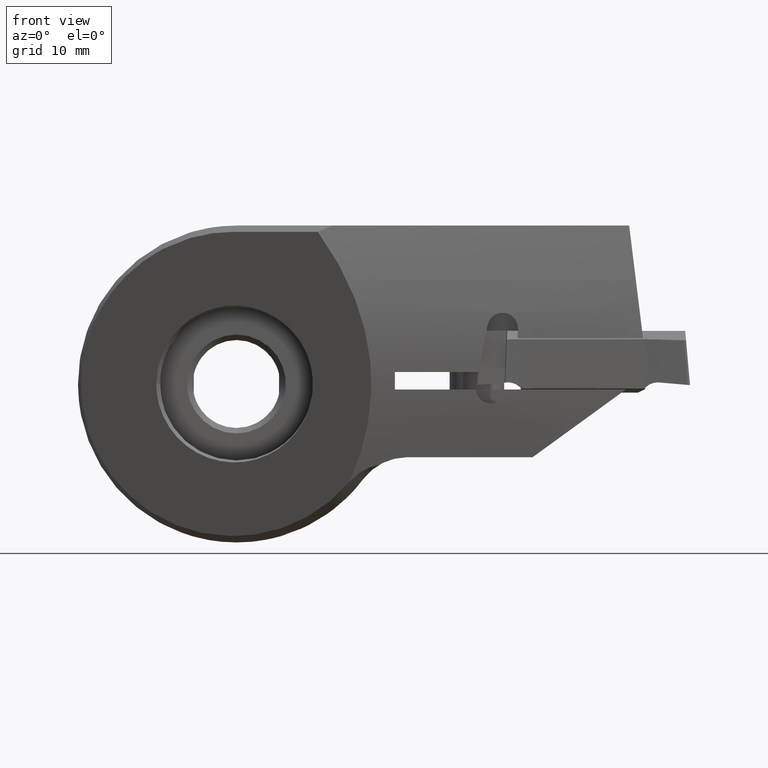
[diagram: clean part render]
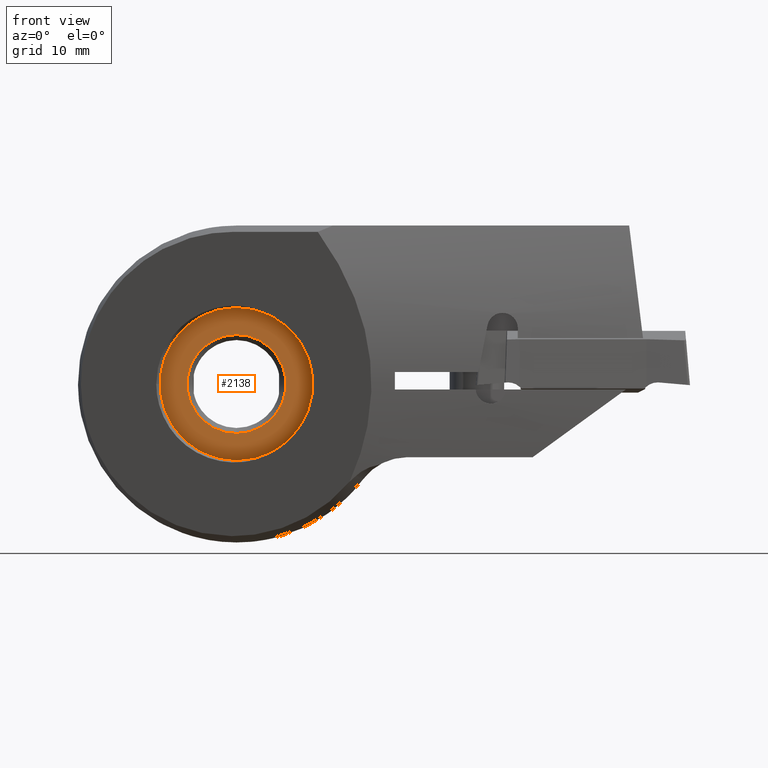
[diagram: same view with one face highlighted and labeled with its STEP entity id]
A machine part, front view. The second image highlights one B-rep face of the part: STEP entity #2138.
In plain terms, the highlighted planar face has unit normal (0, -1, 0).
Its self-contained STEP definition (entity closure, byte-faithful):
#830=EDGE_CURVE('Kante27',#1806,#1616,#2307,.T.);
#992=EDGE_CURVE('Kante27',#1616,#1806,#2486,.F.);
#1310=VERTEX_POINT('NONE',#2835);
#1514=EDGE_CURVE('Kante28',#1310,#2120,#3058,.F.);
#1616=VERTEX_POINT('NONE',#3168);
#1778=EDGE_CURVE('Kante28',#2120,#1310,#3345,.T.);
#1806=VERTEX_POINT('NONE',#3377);
#2120=VERTEX_POINT('NONE',#3723);
#2138=ADVANCED_FACE('Fl�che3',(#3743,#3744),#3745,.T.);
#2307=CIRCLE('',#3985,7.0);
#2486=CIRCLE('',#4301,7.0);
#2835=CARTESIAN_POINT('',(5.54152676614177E-016,-6.1,4.525));
#3058=CIRCLE('',#5459,4.525);
#3168=CARTESIAN_POINT('',(0.0,-6.1,7.0));
#3345=CIRCLE('',#5942,4.525);
#3377=CARTESIAN_POINT('',(8.57252759403147E-016,-6.1,-7.0));
#3723=CARTESIAN_POINT('',(0.0,-6.1,-4.525));
#3743=FACE_OUTER_BOUND('',#6747,.T.);
#3744=FACE_BOUND('',#6748,.T.);
#3745=PLANE('',#6749);
#3985=AXIS2_PLACEMENT_3D('',#7036,#7037,#7038);
#4301=AXIS2_PLACEMENT_3D('',#7210,#7211,#7212);
#5459=AXIS2_PLACEMENT_3D('',#7824,#7825,#7826);
#5942=AXIS2_PLACEMENT_3D('',#8131,#8132,#8133);
#6747=EDGE_LOOP('',(#8571,#8572));
#6748=EDGE_LOOP('',(#8573,#8574));
#6749=AXIS2_PLACEMENT_3D('',#8575,#8576,#8577);
#7036=CARTESIAN_POINT('',(0.0,-6.1,0.0));
#7037=DIRECTION('',(-0.0,1.0,0.0));
#7038=DIRECTION('',(0.0,0.0,1.0));
#7210=CARTESIAN_POINT('',(0.0,-6.1,0.0));
#7211=DIRECTION('',(0.0,-1.0,0.0));
#7212=DIRECTION('',(0.0,0.0,1.0));
#7824=CARTESIAN_POINT('',(0.0,-6.1,0.0));
#7825=DIRECTION('',(0.0,-1.0,0.0));
#7826=DIRECTION('',(0.0,0.0,-1.0));
#8131=CARTESIAN_POINT('',(0.0,-6.1,0.0));
#8132=DIRECTION('',(0.0,1.0,0.0));
#8133=DIRECTION('',(0.0,0.0,-1.0));
#8571=ORIENTED_EDGE('',*,*,#992,.F.);
#8572=ORIENTED_EDGE('',*,*,#830,.F.);
#8573=ORIENTED_EDGE('',*,*,#1778,.T.);
#8574=ORIENTED_EDGE('',*,*,#1514,.T.);
#8575=CARTESIAN_POINT('',(-7.0,-6.1,0.0));
#8576=DIRECTION('',(0.0,-1.0,0.0));
#8577=DIRECTION('',(1.0,0.0,0.0));